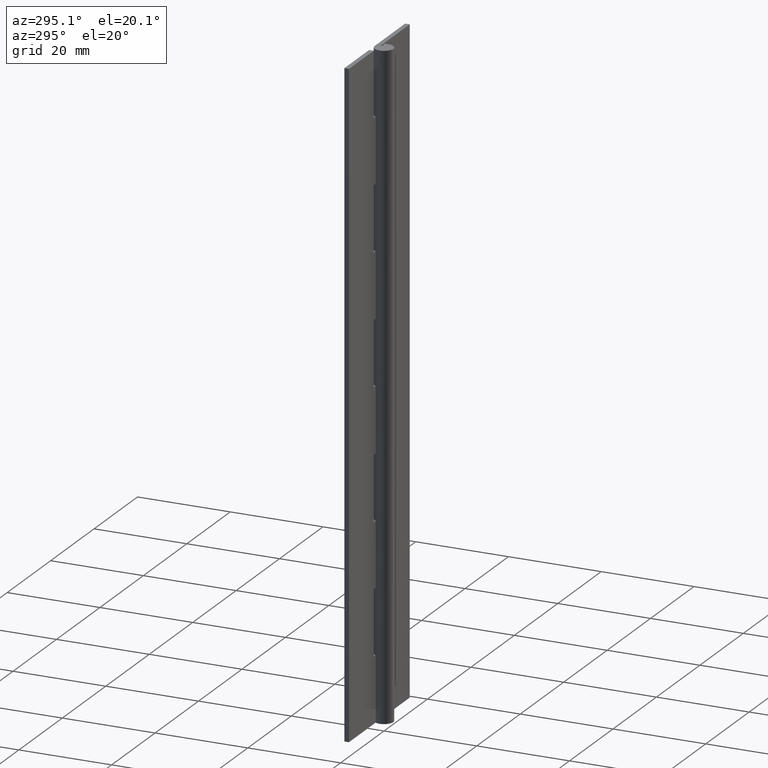
[diagram: clean part render]
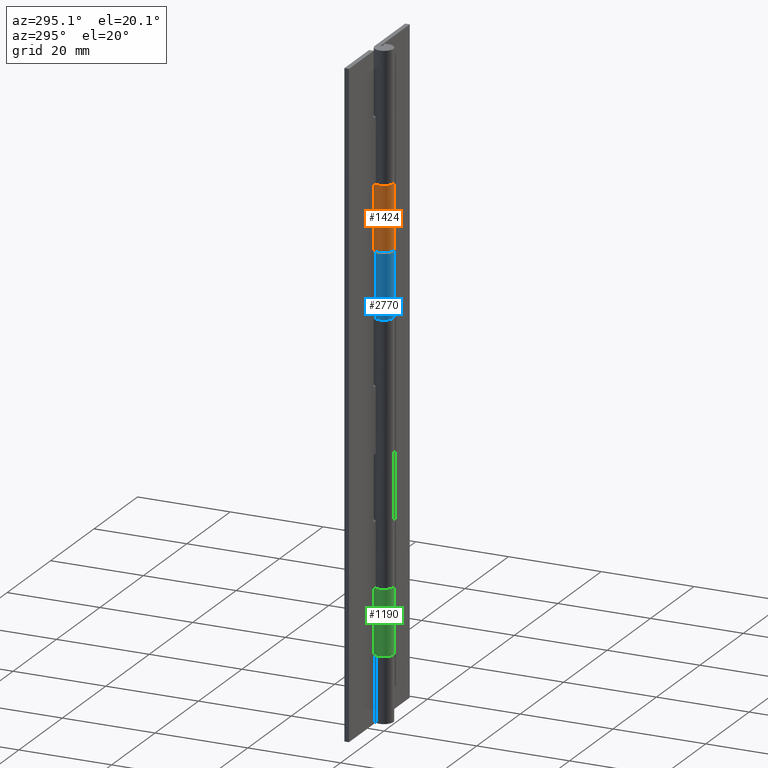
[diagram: same view with three faces highlighted in distinct colors, each labeled with its STEP entity id]
A machine part, auxiliary view with three faces highlighted in distinct colors.
Their STEP definitions:

[orange] entity #1424 — the highlighted face is a freeform B-spline surface patch.
#93=CARTESIAN_POINT('',(-3.673807E-016,2.0,112.0));
#94=VERTEX_POINT('',#93);
#100=CARTESIAN_POINT('',(1.759971590679810,0.949999999999988,112.0));
#101=VERTEX_POINT('',#100);
#102=CARTESIAN_POINT('',(1.759971590679811,0.949999999999988,112.0));
#103=CARTESIAN_POINT('',(2.483544518215579,-0.390492417103159,112.0));
#104=CARTESIAN_POINT('',(1.383518044628761,-1.444256840103799,112.0));
#105=CARTESIAN_POINT('',(0.283491571041944,-2.498021263104437,112.0));
#106=CARTESIAN_POINT('',(-1.024695076595965,-1.717556403731764,112.0));
#107=CARTESIAN_POINT('',(-2.332881724233875,-0.937091544359090,112.0));
#108=CARTESIAN_POINT('',(-1.928096575312493,0.531454227820455,112.0));
#109=CARTESIAN_POINT('',(-1.523311426391112,2.000000000000000,112.0));
#110=CARTESIAN_POINT('',(0.0,2.0,112.0));
#118=(BOUNDED_CURVE()B_SPLINE_CURVE(2,(#102,#103,#104,#105,#106,#107,#108,#109,#110),.UNSPECIFIED.,.F.,.U.)B_SPLINE_CURVE_WITH_KNOTS((3,2,2,2,3),(0.0,0.250000000000000,0.500000000000000,0.750000000000000,1.0),.UNSPECIFIED.)CURVE()GEOMETRIC_REPRESENTATION_ITEM()RATIONAL_B_SPLINE_CURVE((1.0,0.795527219493534,1.0,0.795527219493534,1.0,0.795527219493534,1.0,0.795527219493534,1.0))REPRESENTATION_ITEM(''));
#119=EDGE_CURVE('',#101,#94,#118,.T.);
#359=CARTESIAN_POINT('',(1.759971590679810,0.949999999999988,98.0));
#360=VERTEX_POINT('',#359);
#366=CARTESIAN_POINT('',(-3.673807E-016,2.0,98.0));
#367=VERTEX_POINT('',#366);
#368=CARTESIAN_POINT('',(0.0,2.0,98.0));
#369=CARTESIAN_POINT('',(-1.523311426391111,2.000000000000000,98.0));
#370=CARTESIAN_POINT('',(-1.928096575312493,0.531454227820456,98.0));
#371=CARTESIAN_POINT('',(-2.332881724233876,-0.937091544359089,98.0));
#372=CARTESIAN_POINT('',(-1.024695076595966,-1.717556403731763,98.0));
#373=CARTESIAN_POINT('',(0.283491571041944,-2.498021263104438,98.0));
#374=CARTESIAN_POINT('',(1.383518044628761,-1.444256840103798,98.0));
#375=CARTESIAN_POINT('',(2.483544518215579,-0.390492417103159,98.0));
#376=CARTESIAN_POINT('',(1.759971590679811,0.949999999999988,98.0));
#384=(BOUNDED_CURVE()B_SPLINE_CURVE(2,(#368,#369,#370,#371,#372,#373,#374,#375,#376),.UNSPECIFIED.,.F.,.U.)B_SPLINE_CURVE_WITH_KNOTS((3,2,2,2,3),(0.0,0.250000000000000,0.500000000000000,0.750000000000000,1.0),.UNSPECIFIED.)CURVE()GEOMETRIC_REPRESENTATION_ITEM()RATIONAL_B_SPLINE_CURVE((1.0,0.795527219493534,1.0,0.795527219493534,1.0,0.795527219493534,1.0,0.795527219493534,1.0))REPRESENTATION_ITEM(''));
#385=EDGE_CURVE('',#367,#360,#384,.T.);
#1020=CARTESIAN_POINT('',(-3.673807E-016,2.0,112.0));
#1021=CARTESIAN_POINT('',(-3.673807E-016,2.0,98.0));
#1022=QUASI_UNIFORM_CURVE('',1,(#1020,#1021),.UNSPECIFIED.,.F.,.U.);
#1023=EDGE_CURVE('',#94,#367,#1022,.T.);
#1353=CARTESIAN_POINT('',(1.759971590679810,0.949999999999988,112.0));
#1354=CARTESIAN_POINT('',(1.759971590679810,0.949999999999988,98.0));
#1355=QUASI_UNIFORM_CURVE('',1,(#1353,#1354),.UNSPECIFIED.,.F.,.U.);
#1356=EDGE_CURVE('',#101,#360,#1355,.T.);
#1396=CARTESIAN_POINT('',(0.074705397571538,1.998604288891044,112.349999999999990));
#1397=CARTESIAN_POINT('',(0.074705397571538,1.998604288891044,97.641249999999985));
#1398=CARTESIAN_POINT('',(-2.378738422527856,2.090311034953146,112.350000000000010));
#1399=CARTESIAN_POINT('',(-2.378738422527856,2.090311034953146,97.641249999999985));
#1400=CARTESIAN_POINT('',(-1.972421111082869,-0.330990876844993,112.349999999999990));
#1401=CARTESIAN_POINT('',(-1.972421111082869,-0.330990876844993,97.641249999999985));
#1402=CARTESIAN_POINT('',(-1.566103799637883,-2.752292788643133,112.350000000000010));
#1403=CARTESIAN_POINT('',(-1.566103799637883,-2.752292788643133,97.641249999999985));
#1404=CARTESIAN_POINT('',(0.723011019827740,-1.864739945731750,112.349999999999990));
#1405=CARTESIAN_POINT('',(0.723011019827740,-1.864739945731750,97.641249999999985));
#1406=CARTESIAN_POINT('',(3.012125839293363,-0.977187102820367,112.350000000000010));
#1407=CARTESIAN_POINT('',(3.012125839293363,-0.977187102820367,97.641249999999985));
#1408=CARTESIAN_POINT('',(1.680010044685116,1.085157246557895,112.349999999999990));
#1409=CARTESIAN_POINT('',(1.680010044685116,1.085157246557895,97.641249999999985));
#1417=(BOUNDED_SURFACE()B_SPLINE_SURFACE(1,2,((#1396,#1398,#1400,#1402,#1404,#1406,#1408),(#1397,#1399,#1401,#1403,#1405,#1407,#1409)),.UNSPECIFIED.,.F.,.F.,.U.)B_SPLINE_SURFACE_WITH_KNOTS((2,2),(3,2,2,3),(0.0,14.708750000000030),(0.0,3.801531476131834,7.603062952263668,11.404594428395500),.UNSPECIFIED.)GEOMETRIC_REPRESENTATION_ITEM()RATIONAL_B_SPLINE_SURFACE(((1.0,0.631578351302498,1.0,0.631578351302498,1.0,0.631578351302498,1.0),(1.0,0.631578351302498,1.0,0.631578351302498,1.0,0.631578351302498,1.0)))REPRESENTATION_ITEM('')SURFACE());
#1418=ORIENTED_EDGE('',*,*,#1356,.F.);
#1419=ORIENTED_EDGE('',*,*,#119,.T.);
#1420=ORIENTED_EDGE('',*,*,#1023,.T.);
#1421=ORIENTED_EDGE('',*,*,#385,.T.);
#1422=EDGE_LOOP('',(#1418,#1419,#1420,#1421));
#1423=FACE_OUTER_BOUND('',#1422,.T.);
#1424=ADVANCED_FACE('',(#1423),#1417,.T.);

[blue] entity #2770 — the highlighted face is a freeform B-spline surface patch.
#1702=CARTESIAN_POINT('',(0.0,2.0,98.0));
#1703=VERTEX_POINT('',#1702);
#1744=CARTESIAN_POINT('',(-1.759971590679805,0.950000000000000,98.0));
#1745=VERTEX_POINT('',#1744);
#1751=CARTESIAN_POINT('',(0.0,2.0,98.0));
#1752=CARTESIAN_POINT('',(1.523311426391113,2.000000000000000,98.0));
#1753=CARTESIAN_POINT('',(1.928096575312494,0.531454227820452,98.0));
#1754=CARTESIAN_POINT('',(2.332881724233873,-0.937091544359094,98.0));
#1755=CARTESIAN_POINT('',(1.024695076595961,-1.717556403731766,98.0));
#1756=CARTESIAN_POINT('',(-0.283491571041951,-2.498021263104438,98.0));
#1757=CARTESIAN_POINT('',(-1.383518044628767,-1.444256840103794,98.0));
#1758=CARTESIAN_POINT('',(-2.483544518215582,-0.390492417103149,98.0));
#1759=CARTESIAN_POINT('',(-1.759971590679806,0.949999999999997,98.0));
#1767=(BOUNDED_CURVE()B_SPLINE_CURVE(2,(#1751,#1752,#1753,#1754,#1755,#1756,#1757,#1758,#1759),.UNSPECIFIED.,.F.,.U.)B_SPLINE_CURVE_WITH_KNOTS((3,2,2,2,3),(0.0,0.250000000000000,0.500000000000000,0.750000000000000,1.0),.UNSPECIFIED.)CURVE()GEOMETRIC_REPRESENTATION_ITEM()RATIONAL_B_SPLINE_CURVE((1.0,0.795527219493534,1.0,0.795527219493534,1.0,0.795527219493534,1.0,0.795527219493534,1.0))REPRESENTATION_ITEM(''));
#1768=EDGE_CURVE('',#1703,#1745,#1767,.T.);
#1798=CARTESIAN_POINT('',(-1.759971590679805,0.950000000000000,84.0));
#1799=VERTEX_POINT('',#1798);
#1800=CARTESIAN_POINT('',(0.0,2.0,84.0));
#1801=VERTEX_POINT('',#1800);
#1802=CARTESIAN_POINT('',(-1.759971590679804,0.950000000000000,84.0));
#1803=CARTESIAN_POINT('',(-2.483544518215584,-0.390492417103144,84.0));
#1804=CARTESIAN_POINT('',(-1.383518044628769,-1.444256840103792,84.0));
#1805=CARTESIAN_POINT('',(-0.283491571041955,-2.498021263104437,84.0));
#1806=CARTESIAN_POINT('',(1.024695076595959,-1.717556403731767,84.0));
#1807=CARTESIAN_POINT('',(2.332881724233873,-0.937091544359097,84.0));
#1808=CARTESIAN_POINT('',(1.928096575312494,0.531454227820451,84.0));
#1809=CARTESIAN_POINT('',(1.523311426391115,2.000000000000000,84.0));
#1810=CARTESIAN_POINT('',(0.0,2.0,84.0));
#1818=(BOUNDED_CURVE()B_SPLINE_CURVE(2,(#1802,#1803,#1804,#1805,#1806,#1807,#1808,#1809,#1810),.UNSPECIFIED.,.F.,.U.)B_SPLINE_CURVE_WITH_KNOTS((3,2,2,2,3),(0.0,0.250000000000000,0.500000000000000,0.750000000000000,1.0),.UNSPECIFIED.)CURVE()GEOMETRIC_REPRESENTATION_ITEM()RATIONAL_B_SPLINE_CURVE((1.0,0.795527219493534,1.0,0.795527219493534,1.0,0.795527219493534,1.0,0.795527219493534,1.0))REPRESENTATION_ITEM(''));
#1819=EDGE_CURVE('',#1799,#1801,#1818,.T.);
#2697=CARTESIAN_POINT('',(-1.759971590679805,0.950000000000000,98.0));
#2698=CARTESIAN_POINT('',(-1.759971590679805,0.950000000000000,84.0));
#2699=QUASI_UNIFORM_CURVE('',1,(#2697,#2698),.UNSPECIFIED.,.F.,.U.);
#2700=EDGE_CURVE('',#1745,#1799,#2699,.T.);
#2738=CARTESIAN_POINT('',(-1.723258320883051,1.015076725921408,98.349999999999994));
#2739=CARTESIAN_POINT('',(-1.723258320883051,1.015076725921408,83.641249999999985));
#2740=CARTESIAN_POINT('',(-2.969344769301742,-1.100358281051034,98.349999999999994));
#2741=CARTESIAN_POINT('',(-2.969344769301742,-1.100358281051034,83.641249999999985));
#2742=CARTESIAN_POINT('',(-0.645632757753657,-1.892923226682848,98.349999999999994));
#2743=CARTESIAN_POINT('',(-0.645632757753657,-1.892923226682848,83.641249999999985));
#2744=CARTESIAN_POINT('',(1.678079253794428,-2.685488172314661,98.349999999999994));
#2745=CARTESIAN_POINT('',(1.678079253794428,-2.685488172314661,83.641249999999985));
#2746=CARTESIAN_POINT('',(1.984374898665018,-0.249512046899941,98.349999999999994));
#2747=CARTESIAN_POINT('',(1.984374898665018,-0.249512046899941,83.641249999999985));
#2748=CARTESIAN_POINT('',(2.290670543535608,2.186464078514781,98.349999999999994));
#2749=CARTESIAN_POINT('',(2.290670543535608,2.186464078514781,83.641249999999985));
#2750=CARTESIAN_POINT('',(-0.156918191455691,1.993834667466256,98.349999999999994));
#2751=CARTESIAN_POINT('',(-0.156918191455691,1.993834667466256,83.641249999999985));
#2759=(BOUNDED_SURFACE()B_SPLINE_SURFACE(1,2,((#2738,#2740,#2742,#2744,#2746,#2748,#2750),(#2739,#2741,#2743,#2745,#2747,#2749,#2751)),.UNSPECIFIED.,.F.,.F.,.U.)B_SPLINE_SURFACE_WITH_KNOTS((2,2),(3,2,2,3),(0.0,14.708750000000011),(0.0,3.801531476131832,7.603062952263665,11.404594428395500),.UNSPECIFIED.)GEOMETRIC_REPRESENTATION_ITEM()RATIONAL_B_SPLINE_SURFACE(((1.0,0.631578351302498,1.0,0.631578351302498,1.0,0.631578351302498,1.0),(1.0,0.631578351302498,1.0,0.631578351302498,1.0,0.631578351302498,1.0)))REPRESENTATION_ITEM('')SURFACE());
#2760=ORIENTED_EDGE('',*,*,#1768,.T.);
#2761=ORIENTED_EDGE('',*,*,#2700,.T.);
#2762=ORIENTED_EDGE('',*,*,#1819,.T.);
#2763=CARTESIAN_POINT('',(0.0,2.0,98.0));
#2764=CARTESIAN_POINT('',(0.0,2.0,84.0));
#2765=QUASI_UNIFORM_CURVE('',1,(#2763,#2764),.UNSPECIFIED.,.F.,.U.);
#2766=EDGE_CURVE('',#1703,#1801,#2765,.T.);
#2767=ORIENTED_EDGE('',*,*,#2766,.F.);
#2768=EDGE_LOOP('',(#2760,#2761,#2762,#2767));
#2769=FACE_OUTER_BOUND('',#2768,.T.);
#2770=ADVANCED_FACE('',(#2769),#2759,.T.);

[green] entity #1190 — the highlighted face is a freeform B-spline surface patch.
#621=CARTESIAN_POINT('',(-3.673807E-016,2.0,28.0));
#622=VERTEX_POINT('',#621);
#628=CARTESIAN_POINT('',(1.759971590679810,0.949999999999988,28.0));
#629=VERTEX_POINT('',#628);
#630=CARTESIAN_POINT('',(1.759971590679811,0.949999999999988,28.0));
#631=CARTESIAN_POINT('',(2.483544518215579,-0.390492417103159,28.000000000000004));
#632=CARTESIAN_POINT('',(1.383518044628761,-1.444256840103799,28.0));
#633=CARTESIAN_POINT('',(0.283491571041944,-2.498021263104437,28.000000000000004));
#634=CARTESIAN_POINT('',(-1.024695076595965,-1.717556403731764,28.0));
#635=CARTESIAN_POINT('',(-2.332881724233875,-0.937091544359090,28.000000000000004));
#636=CARTESIAN_POINT('',(-1.928096575312493,0.531454227820455,28.0));
#637=CARTESIAN_POINT('',(-1.523311426391112,2.000000000000000,28.000000000000004));
#638=CARTESIAN_POINT('',(0.0,2.0,28.0));
#646=(BOUNDED_CURVE()B_SPLINE_CURVE(2,(#630,#631,#632,#633,#634,#635,#636,#637,#638),.UNSPECIFIED.,.F.,.U.)B_SPLINE_CURVE_WITH_KNOTS((3,2,2,2,3),(0.0,0.250000000000000,0.500000000000000,0.750000000000000,1.0),.UNSPECIFIED.)CURVE()GEOMETRIC_REPRESENTATION_ITEM()RATIONAL_B_SPLINE_CURVE((1.0,0.795527219493534,1.0,0.795527219493534,1.0,0.795527219493534,1.0,0.795527219493534,1.0))REPRESENTATION_ITEM(''));
#647=EDGE_CURVE('',#629,#622,#646,.T.);
#817=CARTESIAN_POINT('',(1.759971590679810,0.949999999999988,14.0));
#818=VERTEX_POINT('',#817);
#824=CARTESIAN_POINT('',(-3.673807E-016,2.0,14.0));
#825=VERTEX_POINT('',#824);
#826=CARTESIAN_POINT('',(0.0,2.0,14.0));
#827=CARTESIAN_POINT('',(-1.523311426391111,2.000000000000000,14.0));
#828=CARTESIAN_POINT('',(-1.928096575312493,0.531454227820456,14.0));
#829=CARTESIAN_POINT('',(-2.332881724233876,-0.937091544359089,14.0));
#830=CARTESIAN_POINT('',(-1.024695076595966,-1.717556403731763,14.0));
#831=CARTESIAN_POINT('',(0.283491571041944,-2.498021263104438,14.0));
#832=CARTESIAN_POINT('',(1.383518044628761,-1.444256840103798,14.0));
#833=CARTESIAN_POINT('',(2.483544518215579,-0.390492417103159,14.0));
#834=CARTESIAN_POINT('',(1.759971590679811,0.949999999999988,14.0));
#842=(BOUNDED_CURVE()B_SPLINE_CURVE(2,(#826,#827,#828,#829,#830,#831,#832,#833,#834),.UNSPECIFIED.,.F.,.U.)B_SPLINE_CURVE_WITH_KNOTS((3,2,2,2,3),(0.0,0.250000000000000,0.500000000000000,0.750000000000000,1.0),.UNSPECIFIED.)CURVE()GEOMETRIC_REPRESENTATION_ITEM()RATIONAL_B_SPLINE_CURVE((1.0,0.795527219493534,1.0,0.795527219493534,1.0,0.795527219493534,1.0,0.795527219493534,1.0))REPRESENTATION_ITEM(''));
#843=EDGE_CURVE('',#825,#818,#842,.T.);
#996=CARTESIAN_POINT('',(-3.673807E-016,2.0,28.0));
#997=CARTESIAN_POINT('',(-3.673807E-016,2.0,14.0));
#998=QUASI_UNIFORM_CURVE('',1,(#996,#997),.UNSPECIFIED.,.F.,.U.);
#999=EDGE_CURVE('',#622,#825,#998,.T.);
#1069=CARTESIAN_POINT('',(1.759971590679810,0.949999999999988,28.0));
#1070=CARTESIAN_POINT('',(1.759971590679810,0.949999999999988,14.0));
#1071=QUASI_UNIFORM_CURVE('',1,(#1069,#1070),.UNSPECIFIED.,.F.,.U.);
#1072=EDGE_CURVE('',#629,#818,#1071,.T.);
#1162=CARTESIAN_POINT('',(0.074705397571538,1.998604288891044,28.350000000000009));
#1163=CARTESIAN_POINT('',(0.074705397571538,1.998604288891044,13.641249999999999));
#1164=CARTESIAN_POINT('',(-2.378738422527856,2.090311034953146,28.350000000000009));
#1165=CARTESIAN_POINT('',(-2.378738422527856,2.090311034953146,13.641249999999998));
#1166=CARTESIAN_POINT('',(-1.972421111082869,-0.330990876844993,28.350000000000009));
#1167=CARTESIAN_POINT('',(-1.972421111082869,-0.330990876844993,13.641249999999999));
#1168=CARTESIAN_POINT('',(-1.566103799637883,-2.752292788643133,28.350000000000009));
#1169=CARTESIAN_POINT('',(-1.566103799637883,-2.752292788643133,13.641249999999998));
#1170=CARTESIAN_POINT('',(0.723011019827740,-1.864739945731750,28.350000000000009));
#1171=CARTESIAN_POINT('',(0.723011019827740,-1.864739945731750,13.641249999999999));
#1172=CARTESIAN_POINT('',(3.012125839293363,-0.977187102820367,28.350000000000009));
#1173=CARTESIAN_POINT('',(3.012125839293363,-0.977187102820367,13.641249999999998));
#1174=CARTESIAN_POINT('',(1.680010044685116,1.085157246557895,28.350000000000009));
#1175=CARTESIAN_POINT('',(1.680010044685116,1.085157246557895,13.641249999999999));
#1183=(BOUNDED_SURFACE()B_SPLINE_SURFACE(1,2,((#1162,#1164,#1166,#1168,#1170,#1172,#1174),(#1163,#1165,#1167,#1169,#1171,#1173,#1175)),.UNSPECIFIED.,.F.,.F.,.U.)B_SPLINE_SURFACE_WITH_KNOTS((2,2),(3,2,2,3),(0.0,14.708750000000011),(0.0,3.801531476131834,7.603062952263668,11.404594428395500),.UNSPECIFIED.)GEOMETRIC_REPRESENTATION_ITEM()RATIONAL_B_SPLINE_SURFACE(((1.0,0.631578351302498,1.0,0.631578351302498,1.0,0.631578351302498,1.0),(1.0,0.631578351302498,1.0,0.631578351302498,1.0,0.631578351302498,1.0)))REPRESENTATION_ITEM('')SURFACE());
#1184=ORIENTED_EDGE('',*,*,#1072,.F.);
#1185=ORIENTED_EDGE('',*,*,#647,.T.);
#1186=ORIENTED_EDGE('',*,*,#999,.T.);
#1187=ORIENTED_EDGE('',*,*,#843,.T.);
#1188=EDGE_LOOP('',(#1184,#1185,#1186,#1187));
#1189=FACE_OUTER_BOUND('',#1188,.T.);
#1190=ADVANCED_FACE('',(#1189),#1183,.T.);